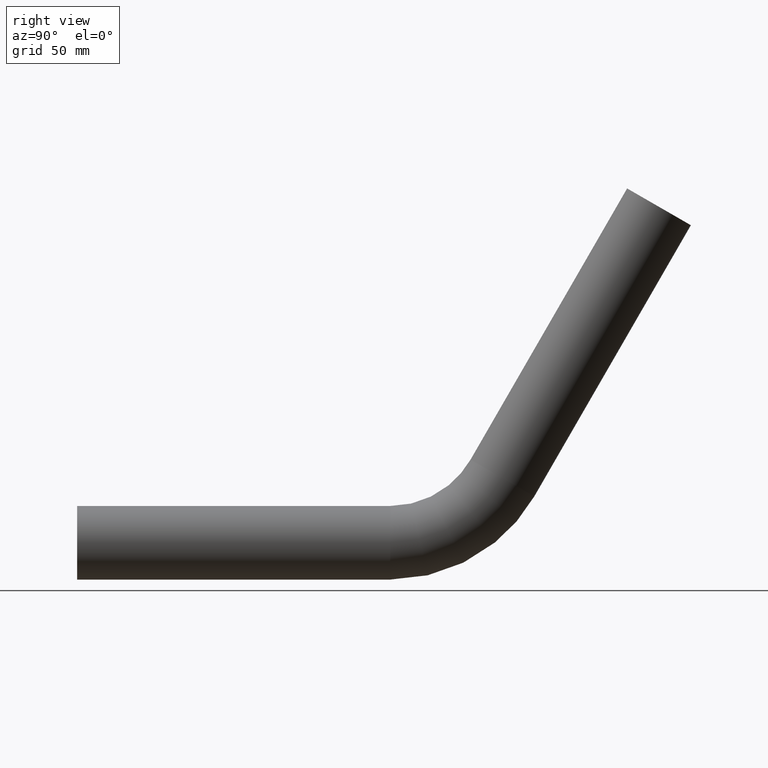
[diagram: clean part render]
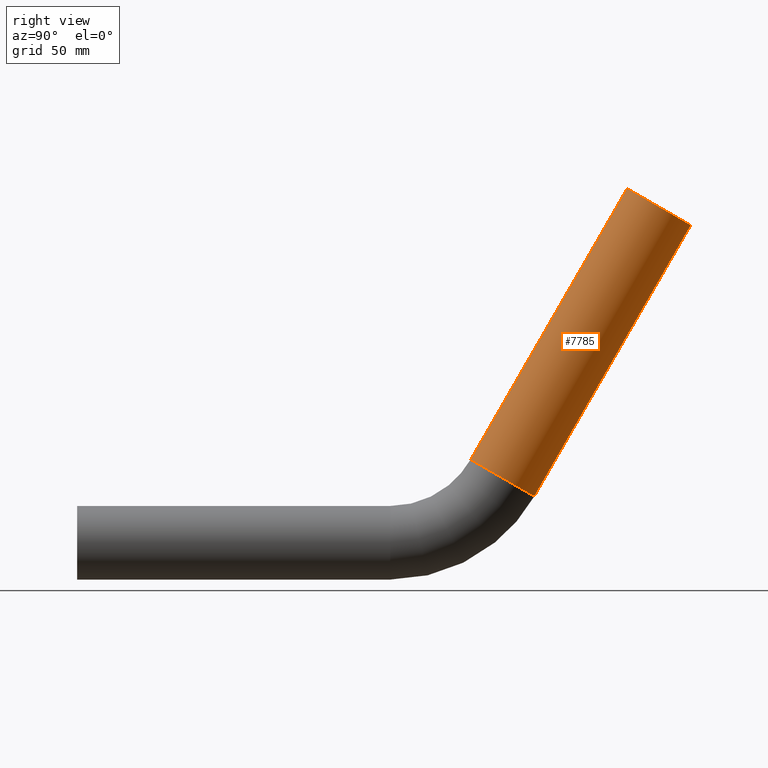
[diagram: same view with one face highlighted and labeled with its STEP entity id]
A machine part, right view. The second image highlights one B-rep face of the part: STEP entity #7785.
In plain terms, the highlighted cylindrical surface (bore or boss wall) has radius 24.15 mm, axis along (0, 0.5, 0.866).
Its self-contained STEP definition (entity closure, byte-faithful):
#75 = ORIENTED_EDGE ( 'NONE', *, *, #2859, .T. ) ;
#136 = DIRECTION ( 'NONE',  ( 0.000000000000000000, 0.4999999999999976130, 0.8660254037844400399 ) ) ;
#759 = VERTEX_POINT ( 'NONE', #8807 ) ;
#2055 = AXIS2_PLACEMENT_3D ( 'NONE', #9052, #2847, #11140 ) ;
#2847 = DIRECTION ( 'NONE',  ( 0.000000000000000000, 0.4999999999999977796, 0.8660254037844399289 ) ) ;
#2859 = EDGE_CURVE ( 'NONE', #759, #759, #10328, .T. ) ;
#3156 = CYLINDRICAL_SURFACE ( 'NONE', #5818, 24.15000000000000568 ) ;
#3656 = VERTEX_POINT ( 'NONE', #5684 ) ;
#4907 = DIRECTION ( 'NONE',  ( 0.000000000000000000, 0.4999999999999977796, 0.8660254037844399289 ) ) ;
#5392 = EDGE_LOOP ( 'NONE', ( #75 ) ) ;
#5684 = CARTESIAN_POINT ( 'NONE',  ( 0.000000000000000000, 360.9388019314994835, 232.5381144561328028 ) ) ;
#5818 = AXIS2_PLACEMENT_3D ( 'NONE', #11440, #136, #12695 ) ;
#7203 = AXIS2_PLACEMENT_3D ( 'NONE', #10865, #4907, #8972 ) ;
#7785 = ADVANCED_FACE ( 'NONE', ( #8018, #11536 ), #3156, .T. ) ;
#8018 = FACE_OUTER_BOUND ( 'NONE', #5392, .T. ) ;
#8807 = CARTESIAN_POINT ( 'NONE',  ( 0.000000000000000000, 258.1917498944277440, 54.57500000000012363 ) ) ;
#8972 = DIRECTION ( 'NONE',  ( 0.000000000000000000, -0.8660254037844399289, 0.4999999999999976685 ) ) ;
#9052 = CARTESIAN_POINT ( 'NONE',  ( 0.000000000000000000, 381.8533154328936803, 220.4631144561328711 ) ) ;
#9124 = ORIENTED_EDGE ( 'NONE', *, *, #10688, .F. ) ;
#10026 = CIRCLE ( 'NONE', #2055, 24.15000000000000568 ) ;
#10328 = CIRCLE ( 'NONE', #7203, 24.15000000000000568 ) ;
#10688 = EDGE_CURVE ( 'NONE', #3656, #3656, #10026, .T. ) ;
#10865 = CARTESIAN_POINT ( 'NONE',  ( 0.000000000000000000, 279.1062633958219408, 42.50000000000017764 ) ) ;
#11140 = DIRECTION ( 'NONE',  ( 0.000000000000000000, -0.8660254037844399289, 0.4999999999999976685 ) ) ;
#11440 = CARTESIAN_POINT ( 'NONE',  ( 0.000000000000000000, 279.1062633958219408, 42.50000000000017764 ) ) ;
#11536 = FACE_OUTER_BOUND ( 'NONE', #12646, .T. ) ;
#12646 = EDGE_LOOP ( 'NONE', ( #9124 ) ) ;
#12695 = DIRECTION ( 'NONE',  ( 0.000000000000000000, -0.8660254037844399289, 0.4999999999999976685 ) ) ;